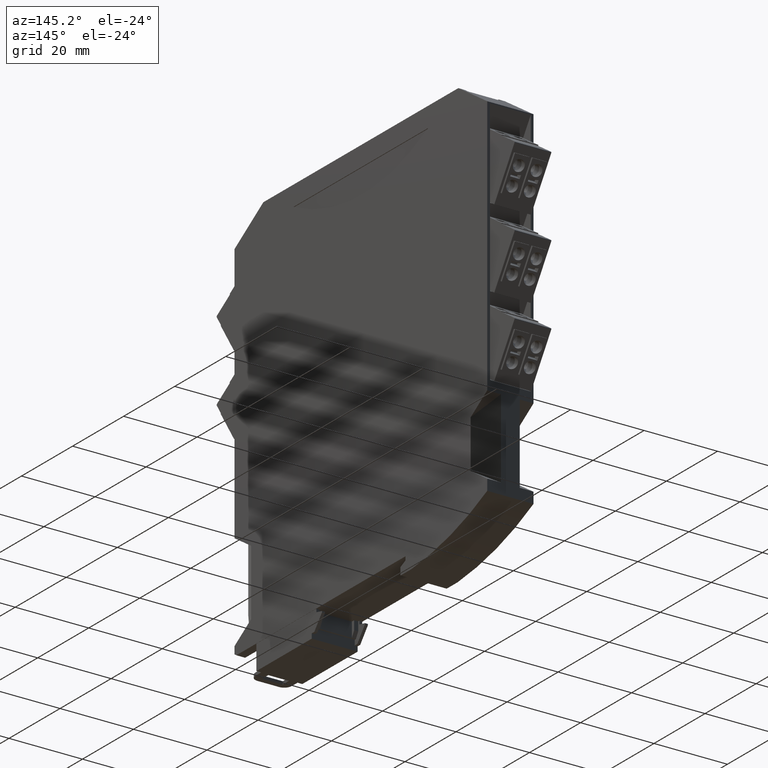
[diagram: clean part render]
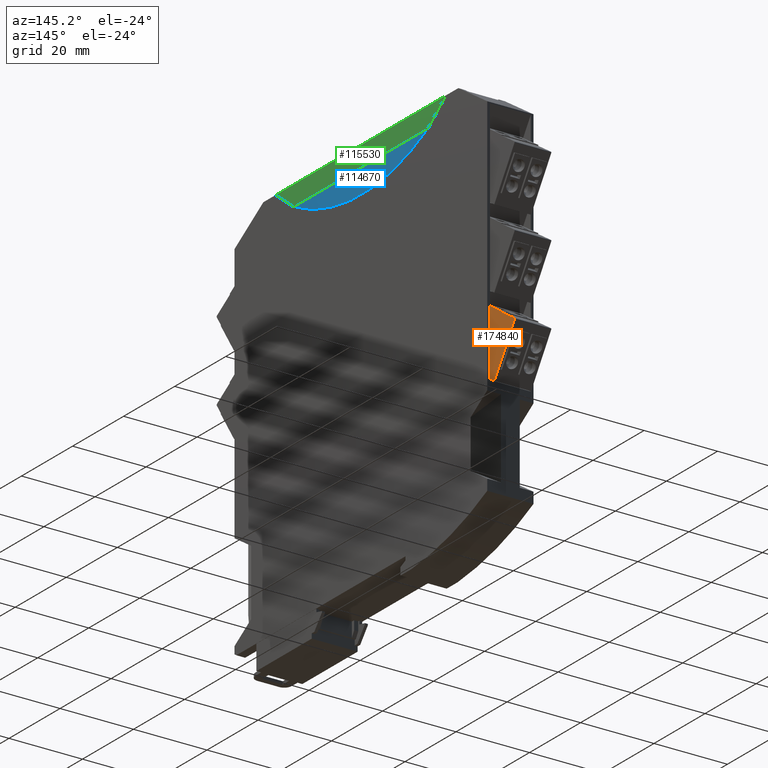
[diagram: same view with three faces highlighted in distinct colors, each labeled with its STEP entity id]
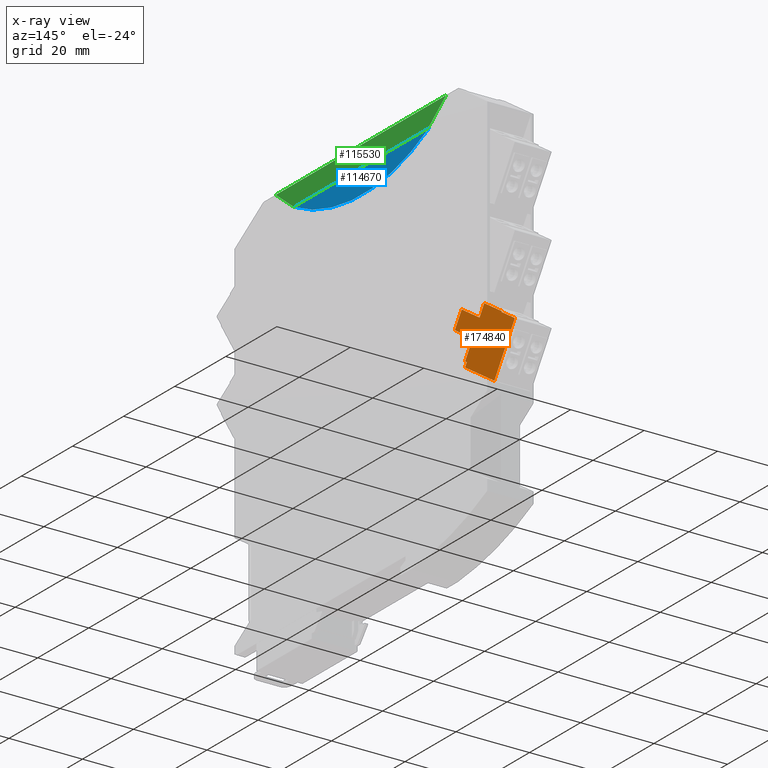
[diagram: x-ray of the same camera — body ghosted, the three highlighted faces saturated]
A machine part, auxiliary view with three faces highlighted in distinct colors.
The next image is the same camera in x-ray (body ghosted, the three faces saturated) — at least one of them is partly hidden behind the body in this view.
Their STEP definitions:

[orange] entity #174840 — the highlighted planar face has unit normal (1, -0, 0).
#123310=CARTESIAN_POINT('',(22.014068573413,31.2307048378954,
9.97499999999996));
#123320=VERTEX_POINT('',#123310);
#123350=CARTESIAN_POINT('',(22.014068573413,1.25055521493778E-12,
9.97499999999996));
#123360=DIRECTION('',(0.,-1.,0.));
#123370=VECTOR('',#123360,1.);
#123380=LINE('',#123350,#123370);
#123390=CARTESIAN_POINT('',(22.014068573413,27.8307048378961,
9.97499999999996));
#123400=VERTEX_POINT('',#123390);
#123410=EDGE_CURVE('',#123320,#123400,#123380,.T.);
#125290=CARTESIAN_POINT('',(13.6840685734126,27.8307048378961,
9.97499999999996));
#125300=VERTEX_POINT('',#125290);
#125330=CARTESIAN_POINT('',(13.6840685734126,-1.06581410364015E-14,
9.97499999999999));
#125340=DIRECTION('',(-1.11892558990331E-45,-1.,2.85864886722263E-43));
#125350=VECTOR('',#125340,1.);
#125360=LINE('',#125330,#125350);
#125370=CARTESIAN_POINT('',(13.6840685734126,22.9307048378953,
9.97499999999996));
#125380=VERTEX_POINT('',#125370);
#125390=EDGE_CURVE('',#125300,#125380,#125360,.T.);
#133180=CARTESIAN_POINT('',(-3.5527136788005E-15,27.8307048378961,
9.97499999999999));
#133190=DIRECTION('',(1.,-1.11892558990331E-45,0.));
#133200=VECTOR('',#133190,1.);
#133210=LINE('',#133180,#133200);
#133220=EDGE_CURVE('',#125300,#123400,#133210,.T.);
#135380=CARTESIAN_POINT('',(30.1640685734126,31.2307048378948,
9.97499999999996));
#135390=VERTEX_POINT('',#135380);
#135420=CARTESIAN_POINT('',(-7.8159700933611E-13,31.230704837897,
9.97499999999996));
#135430=DIRECTION('',(-1.,7.46069872548105E-14,0.));
#135440=VECTOR('',#135430,1.);
#135450=LINE('',#135420,#135440);
#135460=EDGE_CURVE('',#135390,#123320,#135450,.T.);
#148630=CARTESIAN_POINT('',(30.1640685734126,31.0307048378945,
9.97499999999996));
#148640=VERTEX_POINT('',#148630);
#148720=CARTESIAN_POINT('',(36.1640685734126,31.0307048378945,
9.97499999999996));
#148730=VERTEX_POINT('',#148720);
#148760=CARTESIAN_POINT('',(-7.8159700933611E-13,31.0307048378945,
9.97499999999996));
#148770=DIRECTION('',(-1.,0.,0.));
#148780=VECTOR('',#148770,1.);
#148790=LINE('',#148760,#148780);
#148800=EDGE_CURVE('',#148730,#148640,#148790,.T.);
#149020=CARTESIAN_POINT('',(36.4640685734126,30.7307048378945,
9.97499999999996));
#149030=VERTEX_POINT('',#149020);
#149060=CARTESIAN_POINT('',(36.1640685734126,30.7307048378945,
9.97499999999996));
#149070=DIRECTION('',(0.,0.,-1.));
#149080=DIRECTION('',(-1.,0.,0.));
#149090=AXIS2_PLACEMENT_3D('',#149060,#149070,#149080);
#149100=CIRCLE('',#149090,0.3);
#149110=EDGE_CURVE('',#148730,#149030,#149100,.T.);
#149350=CARTESIAN_POINT('',(36.4640685734126,16.2307048378937,
9.97499999999996));
#149360=VERTEX_POINT('',#149350);
#149390=CARTESIAN_POINT('',(36.4640685734126,1.25055521493778E-12,
9.97499999999996));
#149400=DIRECTION('',(0.,1.,0.));
#149410=VECTOR('',#149400,1.);
#149420=LINE('',#149390,#149410);
#149430=EDGE_CURVE('',#149360,#149030,#149420,.T.);
#170440=CARTESIAN_POINT('',(22.8090821771808,16.2307048378947,
9.97499999999996));
#170450=VERTEX_POINT('',#170440);
#170480=CARTESIAN_POINT('',(-7.8159700933611E-13,16.2307048378964,
9.97499999999996));
#170490=DIRECTION('',(1.,-7.46069872548105E-14,0.));
#170500=VECTOR('',#170490,1.);
#170510=LINE('',#170480,#170500);
#170520=EDGE_CURVE('',#170450,#149360,#170510,.T.);
#170750=CARTESIAN_POINT('',(22.8090821771808,17.4307048378947,
9.97499999999996));
#170760=VERTEX_POINT('',#170750);
#170790=CARTESIAN_POINT('',(22.8090821771795,1.25055521493778E-12,
9.97499999999996));
#170800=DIRECTION('',(-7.46069872548105E-14,-1.,0.));
#170810=VECTOR('',#170800,1.);
#170820=LINE('',#170790,#170810);
#170830=EDGE_CURVE('',#170760,#170450,#170820,.T.);
#171060=CARTESIAN_POINT('',(22.014068573413,17.5002595155734,
9.97499999999996));
#171070=VERTEX_POINT('',#171060);
#171100=CARTESIAN_POINT('',(-7.8159700933611E-13,19.426240953831,
9.97499999999996));
#171110=DIRECTION('',(0.996194698091739,-0.0871557427477325,0.));
#171120=VECTOR('',#171110,1.);
#171130=LINE('',#171100,#171120);
#171140=EDGE_CURVE('',#171070,#170760,#171130,.T.);
#171360=CARTESIAN_POINT('',(22.014068573413,22.9307048378953,
9.97499999999996));
#171370=VERTEX_POINT('',#171360);
#171400=EDGE_CURVE('',#171370,#171070,#123380,.T.);
#171590=CARTESIAN_POINT('',(-3.5527136788005E-15,22.9307048378953,
9.97499999999999));
#171600=DIRECTION('',(1.,-1.11892558990331E-45,0.));
#171610=VECTOR('',#171600,1.);
#171620=LINE('',#171590,#171610);
#171630=EDGE_CURVE('',#125380,#171370,#171620,.T.);
#174590=CARTESIAN_POINT('',(25.7140685734123,30.5307048378952,
9.97499999999996));
#174600=DIRECTION('',(0.,0.,1.));
#174610=DIRECTION('',(-7.91692437432842E-14,-1.,0.));
#174620=AXIS2_PLACEMENT_3D('',#174590,#174600,#174610);
#174630=PLANE('',#174620);
#174640=ORIENTED_EDGE('',*,*,#170520,.T.);
#174650=ORIENTED_EDGE('',*,*,#170830,.T.);
#174660=ORIENTED_EDGE('',*,*,#171140,.T.);
#174670=ORIENTED_EDGE('',*,*,#171400,.T.);
#174680=ORIENTED_EDGE('',*,*,#171630,.T.);
#174690=ORIENTED_EDGE('',*,*,#125390,.T.);
#174700=ORIENTED_EDGE('',*,*,#133220,.F.);
#174710=ORIENTED_EDGE('',*,*,#123410,.T.);
#174720=ORIENTED_EDGE('',*,*,#135460,.T.);
#174730=CARTESIAN_POINT('',(30.1640685734102,1.25055521493778E-12,
9.97499999999996));
#174740=DIRECTION('',(7.91692437432842E-14,1.,0.));
#174750=VECTOR('',#174740,1.);
#174760=LINE('',#174730,#174750);
#174770=EDGE_CURVE('',#148640,#135390,#174760,.T.);
#174780=ORIENTED_EDGE('',*,*,#174770,.T.);
#174790=ORIENTED_EDGE('',*,*,#148800,.T.);
#174800=ORIENTED_EDGE('',*,*,#149110,.F.);
#174810=ORIENTED_EDGE('',*,*,#149430,.T.);
#174820=EDGE_LOOP('',(#174810,#174800,#174790,#174780,#174720,#174710,
#174700,#174690,#174680,#174670,#174660,#174650,#174640));
#174830=FACE_OUTER_BOUND('',#174820,.T.);
#174840=ADVANCED_FACE('',(#174830),#174630,.T.);

[blue] entity #114670 — the highlighted planar face has unit normal (1, -0, -0).
#114020=CARTESIAN_POINT('',(12.3999992223139,75.8499500002348,
108.250000000007));
#114030=VERTEX_POINT('',#114020);
#114060=CARTESIAN_POINT('',(12.3999992223139,16.8702257341239,
108.25000000001));
#114070=DIRECTION('',(-1.13632427452536E-31,1.,-4.97572203083267E-14));
#114080=VECTOR('',#114070,1.);
#114090=LINE('',#114060,#114080);
#114100=CARTESIAN_POINT('',(12.3999992223139,23.1552602196709,
108.25000000001));
#114110=VERTEX_POINT('',#114100);
#114120=EDGE_CURVE('',#114110,#114030,#114090,.T.);
#114360=CARTESIAN_POINT('',(12.3999992223139,49.5000000002396,
104.849999999972));
#114370=DIRECTION('',(1.,-5.21592700555424E-36,-2.28384227807285E-18));
#114380=DIRECTION('',(-4.191076862855E-30,1.,-1.83510136361891E-12));
#114390=AXIS2_PLACEMENT_3D('',#114360,#114370,#114380);
#114400=PLANE('',#114390);
#114410=ORIENTED_EDGE('',*,*,#114120,.F.);
#114420=CARTESIAN_POINT('',(12.3999992223139,49.500000000262,
87.6631628058997));
#114430=DIRECTION('',(-1.40607370632767E-18,-0.788010753607329,
-0.615661475324882));
#114440=VECTOR('',#114430,1.);
#114450=LINE('',#114420,#114440);
#114460=CARTESIAN_POINT('',(12.3999992223139,75.7980109545381,
108.20942077015));
#114470=VERTEX_POINT('',#114460);
#114480=EDGE_CURVE('',#114030,#114470,#114450,.T.);
#114490=ORIENTED_EDGE('',*,*,#114480,.F.);
#114500=CARTESIAN_POINT('',(12.3999992223139,49.5000000002566,
156.39309229952));
#114510=DIRECTION('',(-1.,5.21592700555424E-36,2.28384227807285E-18));
#114520=DIRECTION('',(-1.13593727821452E-31,-1.,-4.97357076646706E-14));
#114530=AXIS2_PLACEMENT_3D('',#114500,#114510,#114520);
#114540=CIRCLE('',#114530,54.8930922995028);
#114550=CARTESIAN_POINT('',(12.3999992223139,23.2192573012461,
108.199999999999));
#114560=VERTEX_POINT('',#114550);
#114570=EDGE_CURVE('',#114470,#114560,#114540,.T.);
#114580=ORIENTED_EDGE('',*,*,#114570,.F.);
#114590=CARTESIAN_POINT('',(12.3999992223139,49.500000000262,
87.6672334752924));
#114600=DIRECTION('',(1.40607370633292E-18,-0.788010753605531,
0.615661475327183));
#114610=VECTOR('',#114600,1.);
#114620=LINE('',#114590,#114610);
#114630=EDGE_CURVE('',#114560,#114110,#114620,.T.);
#114640=ORIENTED_EDGE('',*,*,#114630,.F.);
#114650=EDGE_LOOP('',(#114640,#114580,#114490,#114410));
#114660=FACE_OUTER_BOUND('',#114650,.T.);
#114670=ADVANCED_FACE('',(#114660),#114400,.T.);

[green] entity #115530 — the highlighted planar face has unit normal (1, -0, -0).
#21290=CARTESIAN_POINT('',(12.5999992226559,16.1795783242363,
113.700000000018));
#21300=VERTEX_POINT('',#21290);
#21330=CARTESIAN_POINT('',(12.5999992226559,49.500000000262,
87.6672334752924));
#21340=DIRECTION('',(1.40607140273701E-18,-0.788010753605531,
0.615661475327183));
#21350=VECTOR('',#21340,1.);
#21360=LINE('',#21330,#21350);
#21370=CARTESIAN_POINT('',(12.5999992226559,23.1552602196528,
108.249999999987));
#21380=VERTEX_POINT('',#21370);
#21390=EDGE_CURVE('',#21380,#21300,#21360,.T.);
#21620=CARTESIAN_POINT('',(12.5999992226559,75.8499500002348,
108.250000000007));
#21630=VERTEX_POINT('',#21620);
#21660=CARTESIAN_POINT('',(12.5999992226559,49.500000000262,
87.6631628058997));
#21670=DIRECTION('',(-1.40607140273175E-18,-0.788010753607329,
-0.615661475324882));
#21680=VECTOR('',#21670,1.);
#21690=LINE('',#21660,#21680);
#21700=CARTESIAN_POINT('',(12.5999992226559,82.8256318955582,
113.699999999896));
#21710=VERTEX_POINT('',#21700);
#21720=EDGE_CURVE('',#21710,#21630,#21690,.T.);
#70120=CARTESIAN_POINT('',(12.5999992226559,49.500000000262,
113.700000000019));
#70130=DIRECTION('',(1.06852826057186E-30,-1.,4.678673467734E-13));
#70140=VECTOR('',#70130,1.);
#70150=LINE('',#70120,#70140);
#70160=EDGE_CURVE('',#21710,#21300,#70150,.T.);
#114200=CARTESIAN_POINT('',(12.5999992226559,49.500000000262,
108.250000000009));
#114210=DIRECTION('',(1.1363224128648E-31,-1.,4.97572203083267E-14));
#114220=VECTOR('',#114210,1.);
#114230=LINE('',#114200,#114220);
#114240=EDGE_CURVE('',#21630,#21380,#114230,.T.);
#115420=CARTESIAN_POINT('',(12.5999992226559,49.4999999999766,
70.3846654518287));
#115430=DIRECTION('',(1.,-5.21592700555424E-36,-2.28384227807285E-18));
#115440=DIRECTION('',(-4.4182643184979E-30,1.,-1.93457734662532E-12));
#115450=AXIS2_PLACEMENT_3D('',#115420,#115430,#115440);
#115460=PLANE('',#115450);
#115470=ORIENTED_EDGE('',*,*,#21390,.F.);
#115480=ORIENTED_EDGE('',*,*,#70160,.T.);
#115490=ORIENTED_EDGE('',*,*,#21720,.F.);
#115500=ORIENTED_EDGE('',*,*,#114240,.F.);
#115510=EDGE_LOOP('',(#115500,#115490,#115480,#115470));
#115520=FACE_OUTER_BOUND('',#115510,.T.);
#115530=ADVANCED_FACE('',(#115520),#115460,.T.);